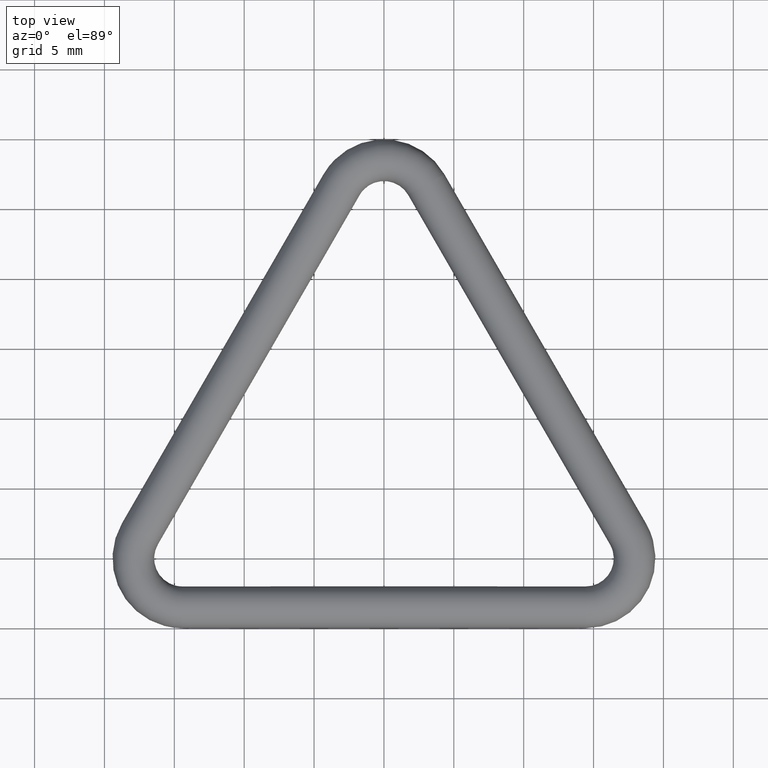
[diagram: clean part render]
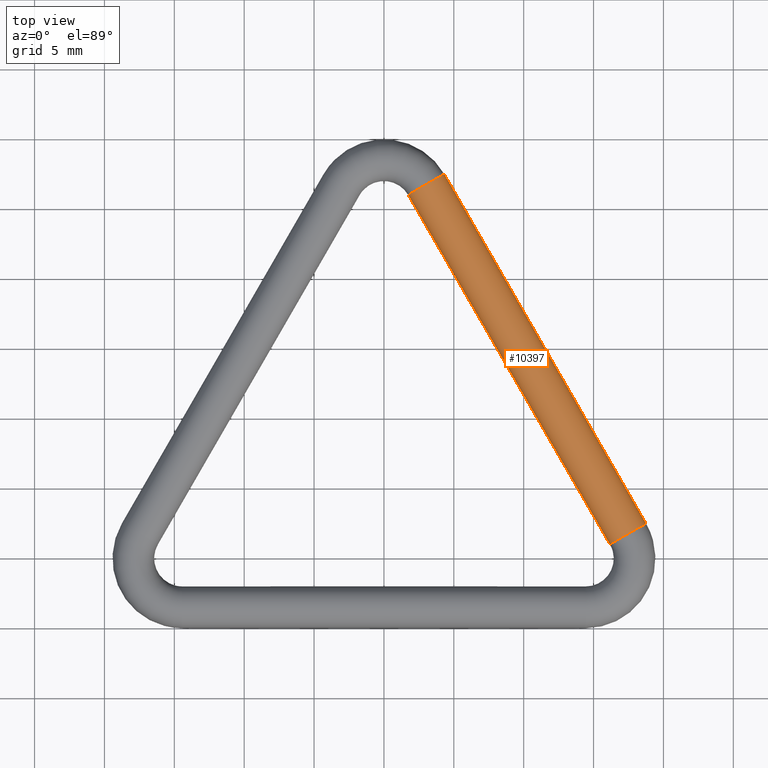
[diagram: same view with one face highlighted and labeled with its STEP entity id]
A machine part, top view. The second image highlights one B-rep face of the part: STEP entity #10397.
In plain terms, the highlighted cylindrical surface (bore or boss wall) has radius 1.5 mm, axis along (-0.5, 0.866, 0).
Its self-contained STEP definition (entity closure, byte-faithful):
#113 = EDGE_LOOP ( 'NONE', ( #7442 ) ) ;
#248 = CIRCLE ( 'NONE', #4920, 1.500000000000000200 ) ;
#443 = AXIS2_PLACEMENT_3D ( 'NONE', #10508, #4688, #5853 ) ;
#521 = EDGE_CURVE ( 'NONE', #11858, #11858, #9536, .T. ) ;
#1420 = EDGE_CURVE ( 'NONE', #6264, #6264, #248, .T. ) ;
#2837 = DIRECTION ( 'NONE',  ( -0.8660254037844398200, -0.4999999999999977800, 0.0000000000000000000 ) ) ;
#2875 = FACE_OUTER_BOUND ( 'NONE', #113, .T. ) ;
#3734 = DIRECTION ( 'NONE',  ( -0.4999999999999977800, 0.8660254037844399300, 0.0000000000000000000 ) ) ;
#4688 = DIRECTION ( 'NONE',  ( -0.4999999999999982800, 0.8660254037844397100, 0.0000000000000000000 ) ) ;
#4920 = AXIS2_PLACEMENT_3D ( 'NONE', #9951, #11847, #4922 ) ;
#4922 = DIRECTION ( 'NONE',  ( 0.0000000000000000000, 0.0000000000000000000, -1.000000000000000000 ) ) ;
#5000 = EDGE_LOOP ( 'NONE', ( #9002 ) ) ;
#5637 = AXIS2_PLACEMENT_3D ( 'NONE', #6705, #3734, #2837 ) ;
#5853 = DIRECTION ( 'NONE',  ( 0.0000000000000000000, 0.0000000000000000000, -1.000000000000000000 ) ) ;
#6264 = VERTEX_POINT ( 'NONE', #7787 ) ;
#6705 = CARTESIAN_POINT ( 'NONE',  ( 17.46484564298610200, 6.749999999999993800, 0.0000000000000000000 ) ) ;
#7442 = ORIENTED_EDGE ( 'NONE', *, *, #521, .F. ) ;
#7787 = CARTESIAN_POINT ( 'NONE',  ( 17.46484564298610200, 6.749999999999993800, -1.500000000000000200 ) ) ;
#8393 = FACE_OUTER_BOUND ( 'NONE', #5000, .T. ) ;
#8783 = CARTESIAN_POINT ( 'NONE',  ( 3.031088913245546300, 31.74999999999998600, -1.500000000000000200 ) ) ;
#9002 = ORIENTED_EDGE ( 'NONE', *, *, #1420, .T. ) ;
#9536 = CIRCLE ( 'NONE', #443, 1.500000000000000200 ) ;
#9951 = CARTESIAN_POINT ( 'NONE',  ( 17.46484564298610200, 6.749999999999993800, 0.0000000000000000000 ) ) ;
#10062 = CYLINDRICAL_SURFACE ( 'NONE', #5637, 1.500000000000001100 ) ;
#10397 = ADVANCED_FACE ( 'NONE', ( #8393, #2875 ), #10062, .T. ) ;
#10508 = CARTESIAN_POINT ( 'NONE',  ( 3.031088913245546300, 31.74999999999998600, 0.0000000000000000000 ) ) ;
#11847 = DIRECTION ( 'NONE',  ( -0.4999999999999982800, 0.8660254037844397100, 0.0000000000000000000 ) ) ;
#11858 = VERTEX_POINT ( 'NONE', #8783 ) ;